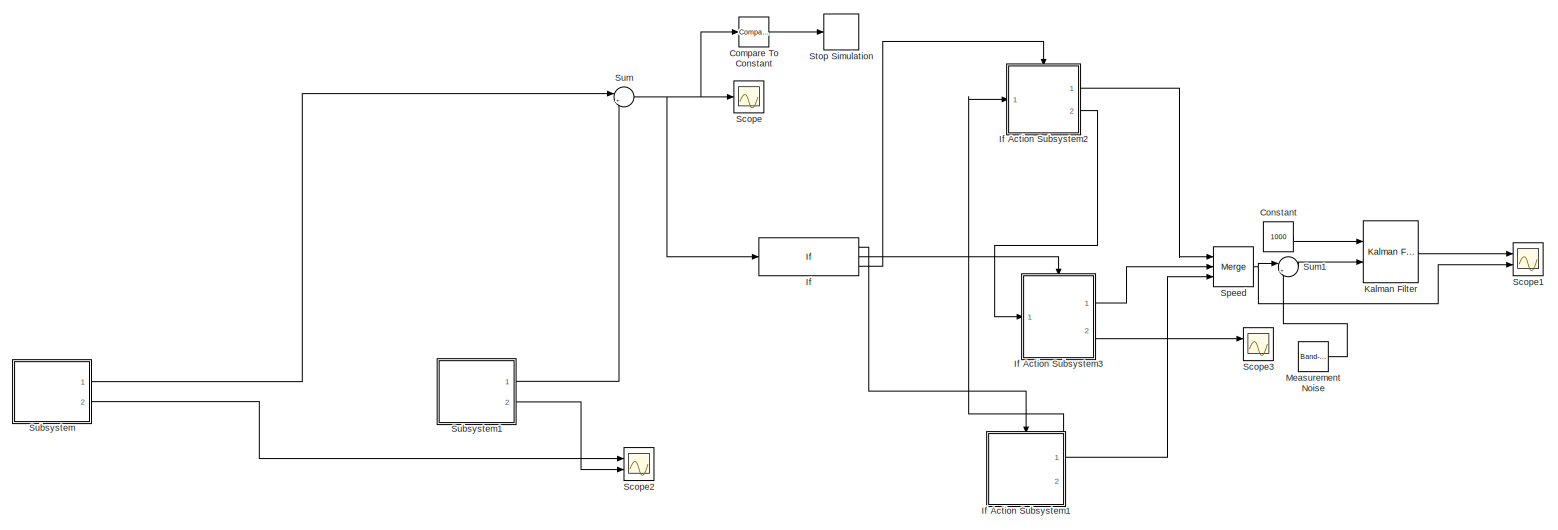
[diagram: root canvas - part 1/1, most of the canvas]
MODEL slx_d261efde91fb
KIND model
CONFIG AbsTol = auto
CONFIG EnableMultiTasking = off
CONFIG FixedStep = auto
CONFIG MaxStep = auto
CONFIG MinStep = auto
CONFIG RelTol = 1e-3
CONFIG SampleTimeConstraint = Unconstrained
CONFIG Solver = VariableStepAuto
CONFIG SolverName = VariableStepAuto
CONFIG StartTime = 0.0
CONFIG StopTime = 500
BLOCK [Reference] Compare To Constant  REF=simulink/Logic and Bit
Operations/Compare
To Constant
  Ports = [1, 1]
  SourceBlock = simulink/Logic and Bit\nOperations/Compare\nTo Constant
  SourceProductBaseCode = SL
  SourceType = Compare To Constant
BLOCK [Constant] Constant
  Value = 1000
BLOCK [If] If
  ElseIfExpressions = u1<200
  IfExpression = u1 >600
  Ports = [1, 3]
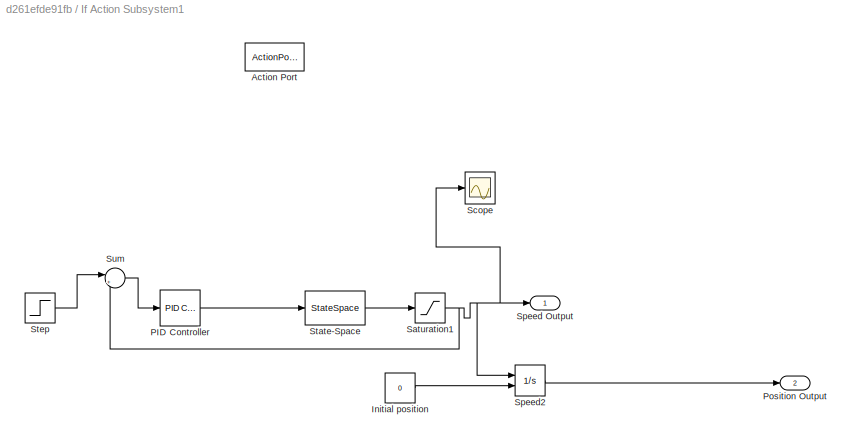
BLOCK [SubSystem] If Action Subsystem1
  Ports = [0, 2, 0, 0, 0, 0, 0, 1]
  RequestExecContextInheritance = off
  TreatAsAtomicUnit = on
BLOCK [ActionPort] If Action Subsystem1/Action Port
BLOCK [Constant] If Action Subsystem1/Initial position
  Value = 0
BLOCK [Reference] If Action Subsystem1/PID Controller  REF=simulink/Continuous/PID Controller
  Ports = [1, 1]
  SourceBlock = simulink/Continuous/PID Controller
  SourceProductBaseCode = SL
  SourceType = PID 1dof
BLOCK [Outport] If Action Subsystem1/Position Output
  Port = 2
BLOCK [Saturate] If Action Subsystem1/Saturation1
  LowerLimit = 0
  UpperLimit = 60
BLOCK [Scope] If Action Subsystem1/Scope
  Floating = off
  NumInputPorts = 1
  Ports = [1]
  ScopeSpecificationString = Simulink.scopes.TimeScopeBlockCfg('CurrentConfiguration', extmgr.ConfigurationSet(extmgr.Configuration('Core','General UI',true,'FigureColor',[0 0 0]),extmgr.Configuration('Core','Source UI',true),extmgr.Configuration('Sources','WiredSimulink',true,'DataLoggingVariableName','ScopeData3'),extmgr.Configuration('Visuals','Time Domain',true,'SerializedDisplays',{struct('MinYLimReal','-6.41863','MaxYLi...<+1535ch>
BLOCK [Outport] If Action Subsystem1/Speed Output
BLOCK [Integrator] If Action Subsystem1/Speed2
  InitialConditionSource = external
  Ports = [2, 1]
BLOCK [StateSpace] If Action Subsystem1/State-Space
  A = A
  B = B
  D = 0
  InitialCondition = 50
  Ports = [1, 1]
BLOCK [Step] If Action Subsystem1/Step
  After = 50
  SampleTime = 0
  Time = 42
BLOCK [Sum] If Action Subsystem1/Sum
  Inputs = |+-
  Ports = [2, 1]
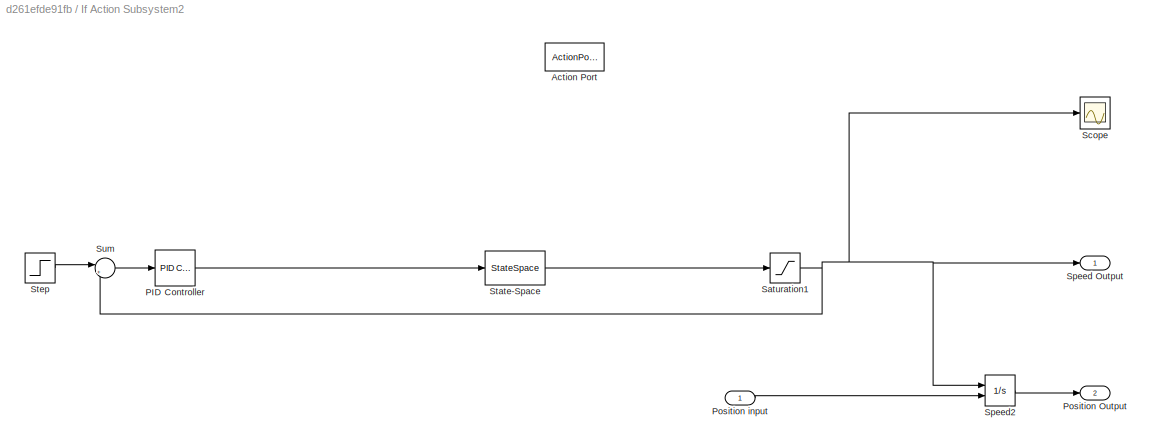
BLOCK [SubSystem] If Action Subsystem2
  Ports = [1, 2, 0, 0, 0, 0, 0, 1]
  RequestExecContextInheritance = off
  TreatAsAtomicUnit = on
BLOCK [ActionPort] If Action Subsystem2/Action Port
BLOCK [Reference] If Action Subsystem2/PID Controller  REF=simulink/Continuous/PID Controller
  Ports = [1, 1]
  SourceBlock = simulink/Continuous/PID Controller
  SourceProductBaseCode = SL
  SourceType = PID 1dof
BLOCK [Outport] If Action Subsystem2/Position Output
  Port = 2
BLOCK [Inport] If Action Subsystem2/Position input
BLOCK [Saturate] If Action Subsystem2/Saturation1
  LowerLimit = 0
  UpperLimit = 30
BLOCK [Scope] If Action Subsystem2/Scope
  Floating = off
  NumInputPorts = 1
  Ports = [1]
  ScopeSpecificationString = Simulink.scopes.TimeScopeBlockCfg('CurrentConfiguration', extmgr.ConfigurationSet(extmgr.Configuration('Core','General UI',true),extmgr.Configuration('Core','Source UI',true),extmgr.Configuration('Sources','WiredSimulink',true,'DataLoggingVariableName','ScopeData4'),extmgr.Configuration('Visuals','Time Domain',true,'SerializedDisplays',{struct('MinYLimReal','5.55265','MaxYLimReal','32.71637','YLab...<+1701ch>
BLOCK [Outport] If Action Subsystem2/Speed Output
BLOCK [Integrator] If Action Subsystem2/Speed2
  InitialConditionSource = external
  Ports = [2, 1]
BLOCK [StateSpace] If Action Subsystem2/State-Space
  A = A
  B = B
  D = 0
  InitialCondition = 50
  Ports = [1, 1]
BLOCK [Step] If Action Subsystem2/Step
  After = 25
  SampleTime = 0
  Time = 25
BLOCK [Sum] If Action Subsystem2/Sum
  Inputs = |+-
  Ports = [2, 1]
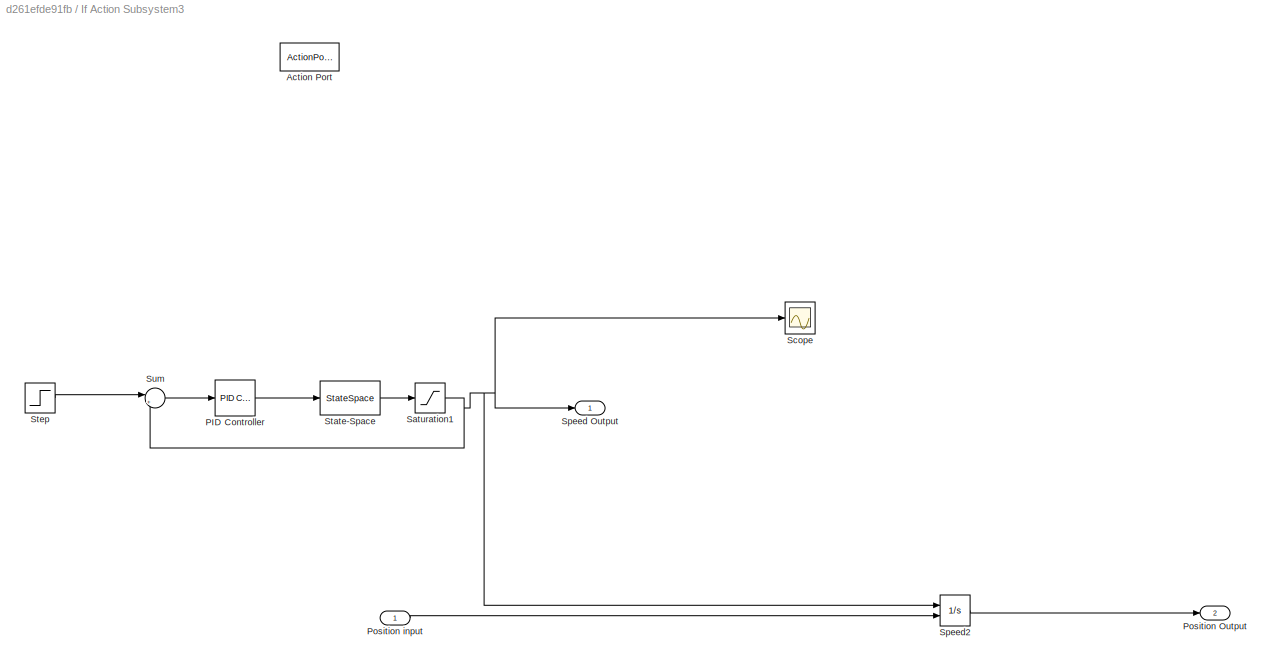
BLOCK [SubSystem] If Action Subsystem3
  Ports = [1, 2, 0, 0, 0, 0, 0, 1]
  RequestExecContextInheritance = off
  TreatAsAtomicUnit = on
BLOCK [ActionPort] If Action Subsystem3/Action Port
BLOCK [Reference] If Action Subsystem3/PID Controller  REF=simulink/Continuous/PID Controller
  Ports = [1, 1]
  SourceBlock = simulink/Continuous/PID Controller
  SourceProductBaseCode = SL
  SourceType = PID 1dof
BLOCK [Outport] If Action Subsystem3/Position Output
  Port = 2
BLOCK [Inport] If Action Subsystem3/Position input
BLOCK [Saturate] If Action Subsystem3/Saturation1
  LowerLimit = 0
  UpperLimit = 30
BLOCK [Scope] If Action Subsystem3/Scope
  Floating = off
  NumInputPorts = 1
  Ports = [1]
  ScopeSpecificationString = Simulink.scopes.TimeScopeBlockCfg('CurrentConfiguration', extmgr.ConfigurationSet(extmgr.Configuration('Core','General UI',true),extmgr.Configuration('Core','Source UI',true),extmgr.Configuration('Sources','WiredSimulink',true,'DataLoggingVariableName','ScopeData6'),extmgr.Configuration('Visuals','Time Domain',true,'SerializedDisplays',{struct('MinYLimReal','5.91943','MaxYLimReal','32.67562','YLab...<+1701ch>
BLOCK [Outport] If Action Subsystem3/Speed Output
BLOCK [Integrator] If Action Subsystem3/Speed2
  InitialConditionSource = external
  Ports = [2, 1]
BLOCK [StateSpace] If Action Subsystem3/State-Space
  A = A
  B = B
  D = 0
  InitialCondition = 25
  Ports = [1, 1]
BLOCK [Step] If Action Subsystem3/Step
  After = 15
  SampleTime = 0
  Time = 15
BLOCK [Sum] If Action Subsystem3/Sum
  Inputs = |+-
  Ports = [2, 1]
BLOCK [Reference] Kalman Filter  REF=ctrlSharedLib/Kalman Filter
  Ports = [2, 1]
  SourceBlock = ctrlSharedLib/Kalman Filter
  SourceProductBaseCode = CT,ID
  SourceType = ctrlKalmanFilter
BLOCK [Reference] Measurement Noise  REF=simulink/Sources/Band-Limited
White Noise
  Ports = [0, 1]
  SourceBlock = simulink/Sources/Band-Limited\nWhite Noise
  SourceProductBaseCode = SL
  SourceType = Band-Limited White Noise.
BLOCK [Scope] Scope
  Floating = off
  NumInputPorts = 1
  Ports = [1]
  ScopeSpecificationString = Simulink.scopes.TimeScopeBlockCfg('CurrentConfiguration', extmgr.ConfigurationSet(extmgr.Configuration('Core','General UI',true),extmgr.Configuration('Core','Source UI',true),extmgr.Configuration('Sources','WiredSimulink',true),extmgr.Configuration('Visuals','Time Domain',true,'SerializedDisplays',{struct('MinYLimReal','134.94584','MaxYLimReal','969.89262','YLabelReal','','MinYLimMag','134.94584',...<+1692ch>
BLOCK [Scope] Scope1
  Floating = off
  NumInputPorts = 2
  Ports = [2]
  ScopeSpecificationString = Simulink.scopes.TimeScopeBlockCfg('CurrentConfiguration', extmgr.ConfigurationSet(extmgr.Configuration('Core','General UI',true),extmgr.Configuration('Core','Source UI',true),extmgr.Configuration('Sources','WiredSimulink',true,'DataLoggingVariableName','ScopeData1'),extmgr.Configuration('Visuals','Time Domain',true,'SerializedDisplays',{struct('MinYLimReal','-3.03968','MaxYLimReal','55.90859','YLa...<+1411ch>
BLOCK [Scope] Scope2
  Floating = off
  NumInputPorts = 2
  Ports = [2]
  ScopeSpecificationString = Simulink.scopes.TimeScopeBlockCfg('CurrentConfiguration', extmgr.ConfigurationSet(extmgr.Configuration('Core','General UI',true),extmgr.Configuration('Core','Source UI',true),extmgr.Configuration('Sources','WiredSimulink',true,'DataLoggingVariableName','ScopeData2'),extmgr.Configuration('Visuals','Time Domain',true,'SerializedDisplays',{struct('MinYLimReal','-7.5','MaxYLimReal','67.5','YLabelReal'...<+1429ch>
BLOCK [Scope] Scope3
  Floating = off
  NumInputPorts = 2
  Ports = [2]
  ScopeSpecificationString = Simulink.scopes.TimeScopeBlockCfg('CurrentConfiguration', extmgr.ConfigurationSet(extmgr.Configuration('Core','General UI',true),extmgr.Configuration('Core','Source UI',true),extmgr.Configuration('Sources','WiredSimulink',true,'DataLoggingVariableName','ScopeData1'),extmgr.Configuration('Visuals','Time Domain',true,'SerializedDisplays',{struct('MinYLimReal','-1.00000','MaxYLimReal','1.00000','YLab...<+1393ch>
BLOCK [Merge] Speed
  Inputs = 3
  Ports = [3, 1]
BLOCK [Stop] Stop Simulation
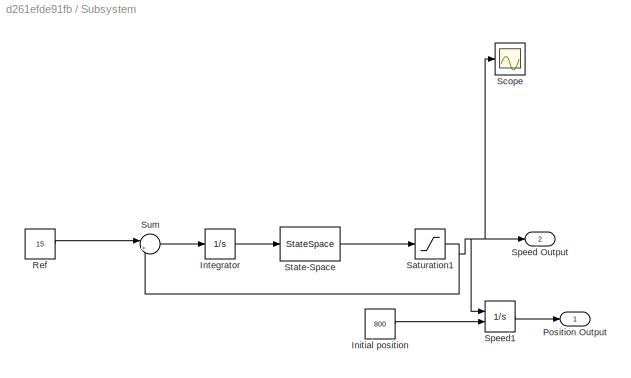
BLOCK [SubSystem] Subsystem
  Ports = [0, 2]
  RequestExecContextInheritance = off
BLOCK [Constant] Subsystem/Initial position
  Value = 800
BLOCK [Integrator] Subsystem/Integrator
  Ports = [1, 1]
BLOCK [Outport] Subsystem/Position Output
BLOCK [Constant] Subsystem/Ref
  Value = 15
BLOCK [Saturate] Subsystem/Saturation1
  LowerLimit = 0
  UpperLimit = 50
BLOCK [Scope] Subsystem/Scope
  Floating = off
  NumInputPorts = 1
  Ports = [1]
  ScopeSpecificationString = Simulink.scopes.TimeScopeBlockCfg('CurrentConfiguration', extmgr.ConfigurationSet(extmgr.Configuration('Core','General UI',true),extmgr.Configuration('Core','Source UI',true),extmgr.Configuration('Sources','WiredSimulink',true,'DataLoggingVariableName','ScopeData1'),extmgr.Configuration('Visuals','Time Domain',true,'SerializedDisplays',{struct('MinYLimReal','1.90617','MaxYLimReal','44.23265','YLab...<+1372ch>
BLOCK [Outport] Subsystem/Speed Output
  Port = 2
BLOCK [Integrator] Subsystem/Speed1
  InitialConditionSource = external
  Ports = [2, 1]
BLOCK [StateSpace] Subsystem/State-Space
  A = A
  B = B
  D = 0
  InitialCondition = 40
  Ports = [1, 1]
BLOCK [Sum] Subsystem/Sum
  Inputs = |+-
  Ports = [2, 1]
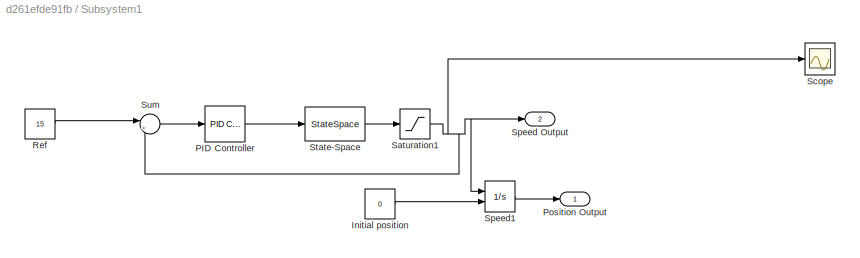
BLOCK [SubSystem] Subsystem1
  Ports = [0, 2]
  RequestExecContextInheritance = off
BLOCK [Constant] Subsystem1/Initial position
  Value = 0
BLOCK [Reference] Subsystem1/PID Controller  REF=simulink/Continuous/PID Controller
  Ports = [1, 1]
  SourceBlock = simulink/Continuous/PID Controller
  SourceProductBaseCode = SL
  SourceType = PID 1dof
BLOCK [Outport] Subsystem1/Position Output
BLOCK [Constant] Subsystem1/Ref
  Value = 15
BLOCK [Saturate] Subsystem1/Saturation1
  LowerLimit = 0
  UpperLimit = 70
BLOCK [Scope] Subsystem1/Scope
  Floating = off
  NumInputPorts = 1
  Ports = [1]
  ScopeSpecificationString = Simulink.scopes.TimeScopeBlockCfg('CurrentConfiguration', extmgr.ConfigurationSet(extmgr.Configuration('Core','General UI',true),extmgr.Configuration('Core','Source UI',true),extmgr.Configuration('Sources','WiredSimulink',true,'DataLoggingVariableName','ScopeData2'),extmgr.Configuration('Visuals','Time Domain',true,'SerializedDisplays',{struct('MinYLimReal','-7.5','MaxYLimReal','67.5','YLabelReal'...<+1379ch>
BLOCK [Outport] Subsystem1/Speed Output
  Port = 2
BLOCK [Integrator] Subsystem1/Speed1
  InitialConditionSource = external
  Ports = [2, 1]
BLOCK [StateSpace] Subsystem1/State-Space
  A = A
  B = B
  D = 0
  InitialCondition = 60
  Ports = [1, 1]
BLOCK [Sum] Subsystem1/Sum
  Inputs = |+-
  Ports = [2, 1]
BLOCK [Sum] Sum
  Inputs = |+-
  Ports = [2, 1]
BLOCK [Sum] Sum1
  Inputs = |++
  Ports = [2, 1]
LINE Compare To Constant:1 -> Stop Simulation:1
LINE Constant:1 -> Kalman Filter:1
LINE If Action Subsystem1/Initial position:1 -> If Action Subsystem1/Speed2:2
LINE If Action Subsystem1/PID Controller:1 -> If Action Subsystem1/State-Space:1
NET If Action Subsystem1/Saturation1:1 -> If Action Subsystem1/Scope:1, If Action Subsystem1/Speed Output:1, If Action Subsystem1/Speed2:1, If Action Subsystem1/Sum:2
LINE If Action Subsystem1/Speed2:1 -> If Action Subsystem1/Position Output:1
LINE If Action Subsystem1/State-Space:1 -> If Action Subsystem1/Saturation1:1
LINE If Action Subsystem1/Step:1 -> If Action Subsystem1/Sum:1
LINE If Action Subsystem1/Sum:1 -> If Action Subsystem1/PID Controller:1
LINE If Action Subsystem1:1 -> Speed:3
LINE If Action Subsystem1:2 -> If Action Subsystem2:1
LINE If Action Subsystem2/PID Controller:1 -> If Action Subsystem2/State-Space:1
LINE If Action Subsystem2/Position input:1 -> If Action Subsystem2/Speed2:2
NET If Action Subsystem2/Saturation1:1 -> If Action Subsystem2/Scope:1, If Action Subsystem2/Speed Output:1, If Action Subsystem2/Speed2:1, If Action Subsystem2/Sum:2
LINE If Action Subsystem2/Speed2:1 -> If Action Subsystem2/Position Output:1
LINE If Action Subsystem2/State-Space:1 -> If Action Subsystem2/Saturation1:1
LINE If Action Subsystem2/Step:1 -> If Action Subsystem2/Sum:1
LINE If Action Subsystem2/Sum:1 -> If Action Subsystem2/PID Controller:1
LINE If Action Subsystem2:1 -> Speed:1
LINE If Action Subsystem2:2 -> If Action Subsystem3:1
LINE If Action Subsystem3/PID Controller:1 -> If Action Subsystem3/State-Space:1
LINE If Action Subsystem3/Position input:1 -> If Action Subsystem3/Speed2:2
NET If Action Subsystem3/Saturation1:1 -> If Action Subsystem3/Scope:1, If Action Subsystem3/Speed Output:1, If Action Subsystem3/Speed2:1, If Action Subsystem3/Sum:2
LINE If Action Subsystem3/Speed2:1 -> If Action Subsystem3/Position Output:1
LINE If Action Subsystem3/State-Space:1 -> If Action Subsystem3/Saturation1:1
LINE If Action Subsystem3/Step:1 -> If Action Subsystem3/Sum:1
LINE If Action Subsystem3/Sum:1 -> If Action Subsystem3/PID Controller:1
LINE If Action Subsystem3:1 -> Speed:2
LINE If Action Subsystem3:2 -> Scope3:1
LINE If:1 -> If Action Subsystem1:ifaction
LINE If:2 -> If Action Subsystem3:ifaction
LINE If:3 -> If Action Subsystem2:ifaction
LINE Kalman Filter:1 -> Scope1:1
LINE Measurement Noise:1 -> Sum1:2
NET Speed:1 -> Scope1:2, Sum1:1
LINE Subsystem/Initial position:1 -> Subsystem/Speed1:2
LINE Subsystem/Integrator:1 -> Subsystem/State-Space:1
LINE Subsystem/Ref:1 -> Subsystem/Sum:1
NET Subsystem/Saturation1:1 -> Subsystem/Scope:1, Subsystem/Speed Output:1, Subsystem/Speed1:1, Subsystem/Sum:2
LINE Subsystem/Speed1:1 -> Subsystem/Position Output:1
LINE Subsystem/State-Space:1 -> Subsystem/Saturation1:1
LINE Subsystem/Sum:1 -> Subsystem/Integrator:1
LINE Subsystem1/Initial position:1 -> Subsystem1/Speed1:2
LINE Subsystem1/PID Controller:1 -> Subsystem1/State-Space:1
LINE Subsystem1/Ref:1 -> Subsystem1/Sum:1
NET Subsystem1/Saturation1:1 -> Subsystem1/Scope:1, Subsystem1/Speed Output:1, Subsystem1/Speed1:1, Subsystem1/Sum:2
LINE Subsystem1/Speed1:1 -> Subsystem1/Position Output:1
LINE Subsystem1/State-Space:1 -> Subsystem1/Saturation1:1
LINE Subsystem1/Sum:1 -> Subsystem1/PID Controller:1
LINE Subsystem1:1 -> Sum:2
LINE Subsystem1:2 -> Scope2:2
LINE Subsystem:1 -> Sum:1
LINE Subsystem:2 -> Scope2:1
LINE Sum1:1 -> Kalman Filter:2
NET Sum:1 -> Compare To Constant:1, If:1, Scope:1
note: NET lines group one-source signal fan-out (src -> all destinations, sorted); 1:1 wires keep LINE
